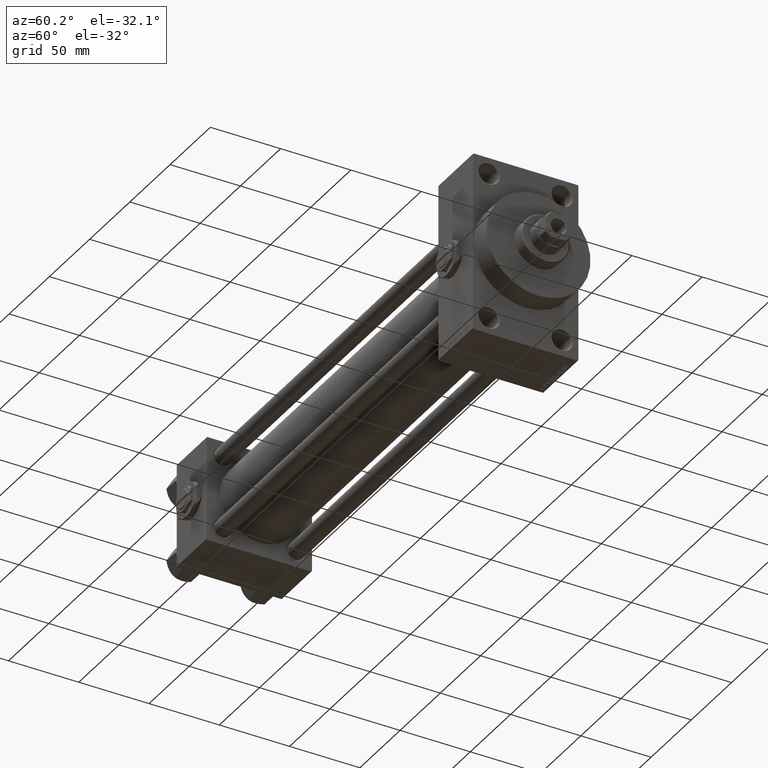
[diagram: clean part render]
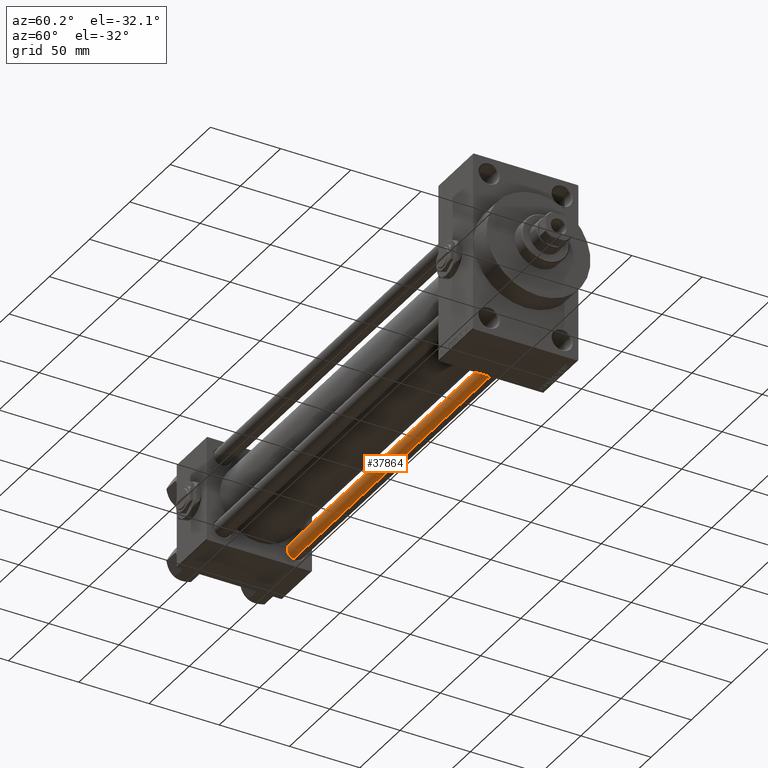
[diagram: same view with one face highlighted and labeled with its STEP entity id]
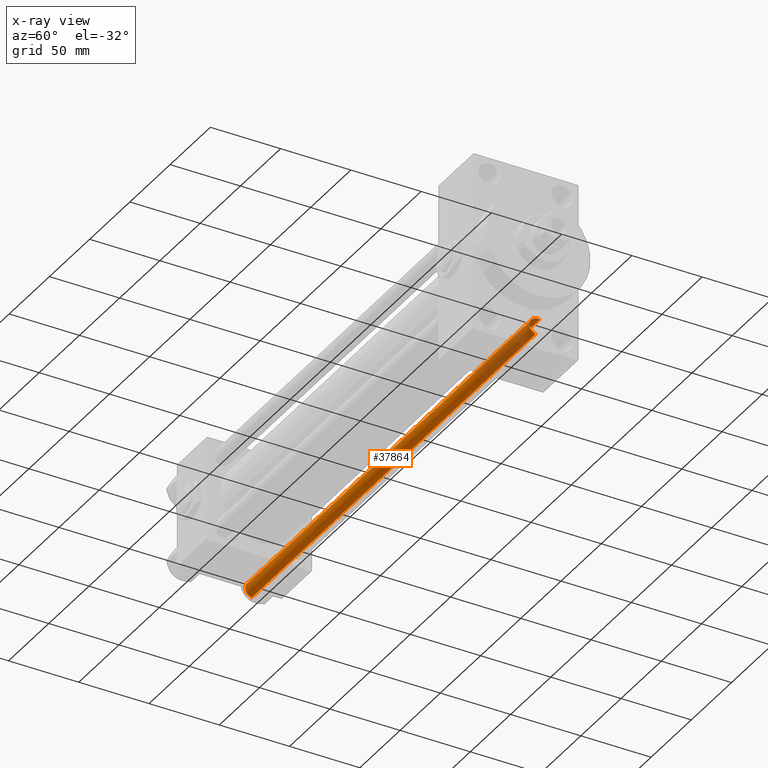
[diagram: x-ray of the same camera — body ghosted, the highlighted face saturated]
A machine part, auxiliary view. The second image highlights one B-rep face of the part: STEP entity #37864.
The next image is the same camera in x-ray: the body ghosted, the highlighted face saturated — about 15% of this face is hidden behind the body in this view.
In plain terms, the highlighted cylindrical surface (edge-blend (fillet) strip) has radius 6 mm, axis along (1, -0, 0).
Its self-contained STEP definition (entity closure, byte-faithful):
#709 = CIRCLE ( 'NONE', #36400, 6.000000000000000888 ) ;
#1066 = CARTESIAN_POINT ( 'NONE',  ( 6.000000000000000888, 7.347880794884120722E-16, 353.5000000000000000 ) ) ;
#6258 = DIRECTION ( 'NONE',  ( 1.000000000000000000, 0.000000000000000000, 0.000000000000000000 ) ) ;
#8423 = ORIENTED_EDGE ( 'NONE', *, *, #13979, .T. ) ;
#8462 = CARTESIAN_POINT ( 'NONE',  ( 6.000000000000000888, 7.347880794884120722E-16, 0.5000000000000559552 ) ) ;
#9173 = EDGE_LOOP ( 'NONE', ( #14098, #8423, #16448, #39453 ) ) ;
#9632 = AXIS2_PLACEMENT_3D ( 'NONE', #25583, #44652, #6258 ) ;
#10851 = CYLINDRICAL_SURFACE ( 'NONE', #30463, 6.000000000000000888 ) ;
#10928 = CARTESIAN_POINT ( 'NONE',  ( -6.000000000000000888, 0.000000000000000000, 353.5000000000000000 ) ) ;
#11931 = EDGE_CURVE ( 'NONE', #41446, #25615, #40817, .T. ) ;
#13978 = EDGE_CURVE ( 'NONE', #18868, #25615, #709, .T. ) ;
#13979 = EDGE_CURVE ( 'NONE', #41446, #36472, #14494, .T. ) ;
#14098 = ORIENTED_EDGE ( 'NONE', *, *, #11931, .F. ) ;
#14494 = CIRCLE ( 'NONE', #9632, 6.000000000000000888 ) ;
#16448 = ORIENTED_EDGE ( 'NONE', *, *, #46090, .T. ) ;
#18868 = VERTEX_POINT ( 'NONE', #27206 ) ;
#22282 = DIRECTION ( 'NONE',  ( -0.000000000000000000, -0.000000000000000000, -1.000000000000000000 ) ) ;
#24575 = DIRECTION ( 'NONE',  ( -0.000000000000000000, -0.000000000000000000, -1.000000000000000000 ) ) ;
#25583 = CARTESIAN_POINT ( 'NONE',  ( 0.000000000000000000, 0.000000000000000000, 353.5000000000000000 ) ) ;
#25615 = VERTEX_POINT ( 'NONE', #8462 ) ;
#25838 = DIRECTION ( 'NONE',  ( -0.000000000000000000, -0.000000000000000000, 1.000000000000000000 ) ) ;
#27206 = CARTESIAN_POINT ( 'NONE',  ( -6.000000000000000888, 0.000000000000000000, 0.5000000000000559552 ) ) ;
#29801 = VECTOR ( 'NONE', #49119, 1000.000000000000000 ) ;
#30421 = FACE_OUTER_BOUND ( 'NONE', #9173, .T. ) ;
#30463 = AXIS2_PLACEMENT_3D ( 'NONE', #30679, #22282, #42373 ) ;
#30679 = CARTESIAN_POINT ( 'NONE',  ( 0.000000000000000000, 0.000000000000000000, 354.0000000000000000 ) ) ;
#34105 = CARTESIAN_POINT ( 'NONE',  ( -6.000000000000000888, 0.000000000000000000, 354.0000000000000000 ) ) ;
#36400 = AXIS2_PLACEMENT_3D ( 'NONE', #37012, #25838, #37267 ) ;
#36472 = VERTEX_POINT ( 'NONE', #10928 ) ;
#37012 = CARTESIAN_POINT ( 'NONE',  ( 0.000000000000000000, 0.000000000000000000, 0.5000000000000559552 ) ) ;
#37267 = DIRECTION ( 'NONE',  ( 1.000000000000000000, 0.000000000000000000, 0.000000000000000000 ) ) ;
#37864 = ADVANCED_FACE ( 'NONE', ( #30421 ), #10851, .T. ) ;
#39453 = ORIENTED_EDGE ( 'NONE', *, *, #13978, .T. ) ;
#40400 = VECTOR ( 'NONE', #24575, 1000.000000000000000 ) ;
#40817 = LINE ( 'NONE', #48450, #40400 ) ;
#41446 = VERTEX_POINT ( 'NONE', #1066 ) ;
#42373 = DIRECTION ( 'NONE',  ( -1.000000000000000000, 0.000000000000000000, 0.000000000000000000 ) ) ;
#44652 = DIRECTION ( 'NONE',  ( 0.000000000000000000, 0.000000000000000000, -1.000000000000000000 ) ) ;
#46057 = LINE ( 'NONE', #34105, #29801 ) ;
#46090 = EDGE_CURVE ( 'NONE', #36472, #18868, #46057, .T. ) ;
#48450 = CARTESIAN_POINT ( 'NONE',  ( 6.000000000000000888, 7.347880794884120722E-16, 354.0000000000000000 ) ) ;
#49119 = DIRECTION ( 'NONE',  ( -0.000000000000000000, -0.000000000000000000, -1.000000000000000000 ) ) ;